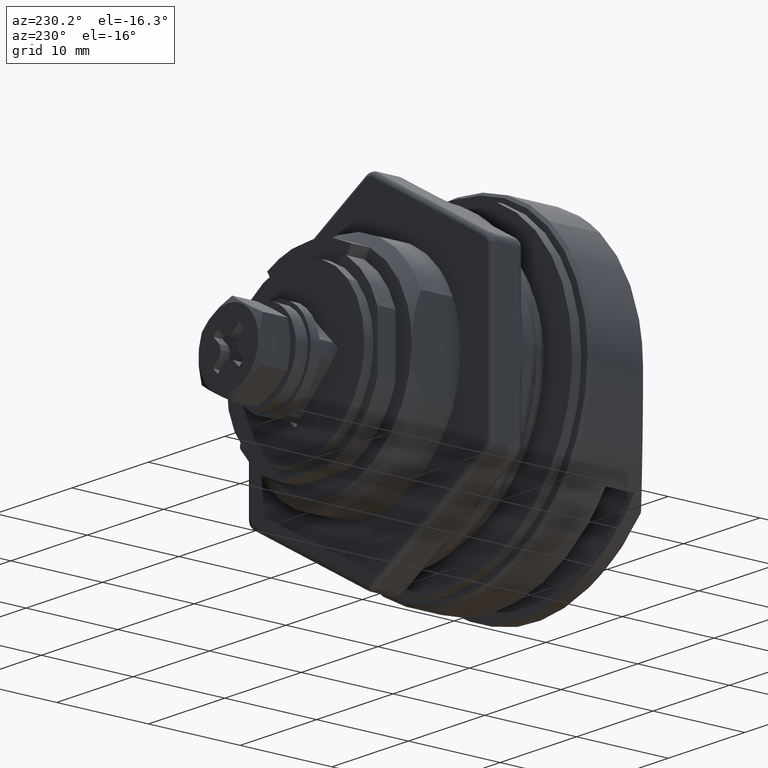
[diagram: clean part render]
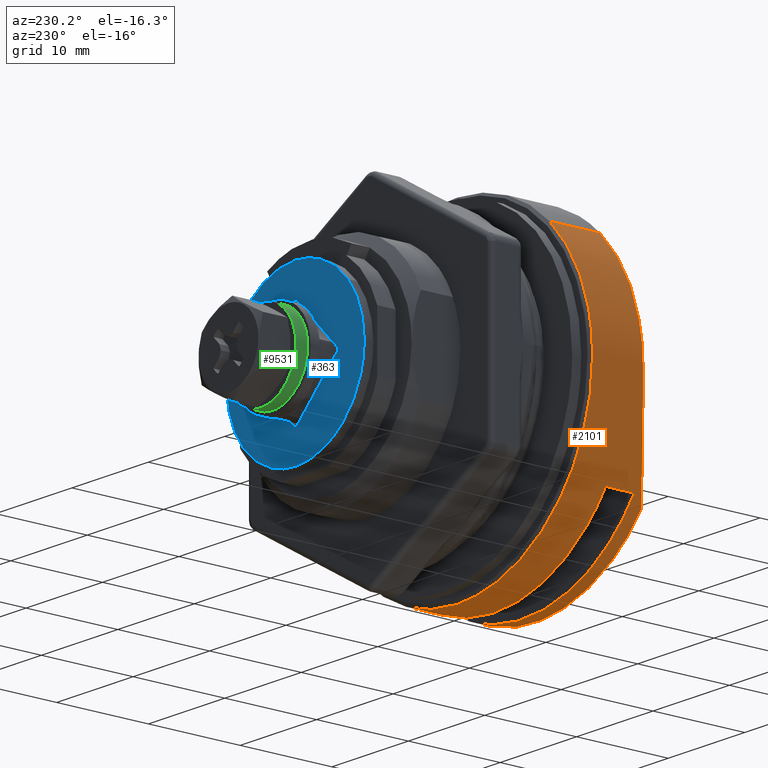
[diagram: same view with three faces highlighted in distinct colors, each labeled with its STEP entity id]
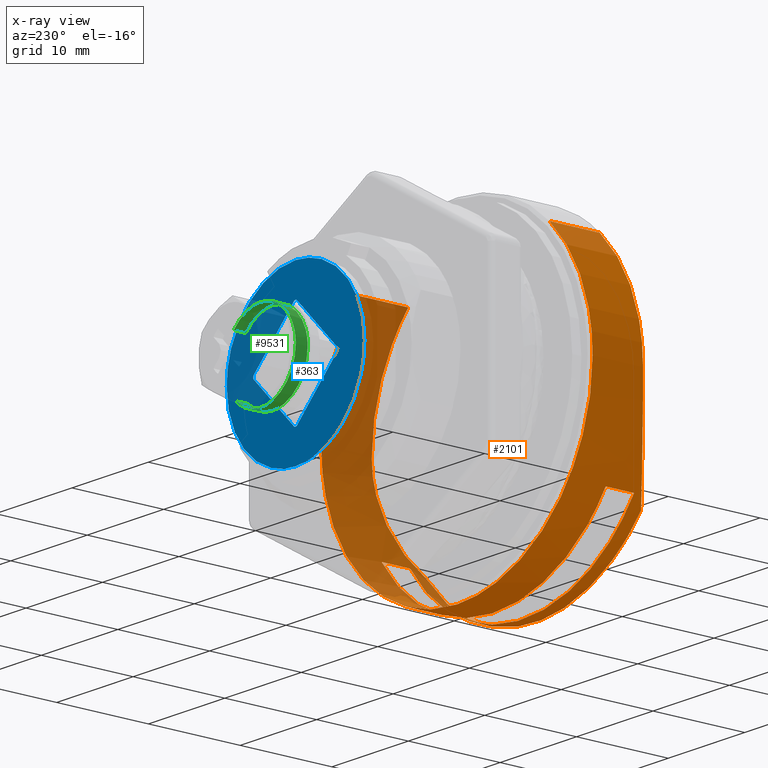
[diagram: x-ray of the same camera — body ghosted, the three highlighted faces saturated]
A machine part, auxiliary view with three faces highlighted in distinct colors.
The next image is the same camera in x-ray (body ghosted, the three faces saturated) — at least one of them is partly hidden behind the body in this view.
Their STEP definitions:

[orange] entity #2101 — the highlighted face is a freeform B-spline surface patch.
#1672=CARTESIAN_POINT('',(-0.299999867046097,-12.218293444005800,-12.875394796144080));
#1673=VERTEX_POINT('',#1672);
#1679=CARTESIAN_POINT('',(-0.300000000000000,0.0,-17.750000000000000));
#1680=VERTEX_POINT('',#1679);
#1681=CARTESIAN_POINT('',(-0.300000000000000,0.0,-17.750000000000000));
#1682=CARTESIAN_POINT('',(-0.299999988543598,-1.052828725761814,-17.750102904742452));
#1683=CARTESIAN_POINT('',(-0.299999966776865,-3.053163715430820,-17.571503823735249));
#1684=CARTESIAN_POINT('',(-0.299999940106577,-5.504128520025335,-16.924691890454209));
#1685=CARTESIAN_POINT('',(-0.299999915992278,-7.720202231654070,-16.032933288582122));
#1686=CARTESIAN_POINT('',(-0.299999892181847,-9.908350323715657,-14.825684033001320));
#1687=CARTESIAN_POINT('',(-0.299999875355516,-11.454668457918050,-13.600188855448771));
#1688=CARTESIAN_POINT('',(-0.299999867046097,-12.218293444005800,-12.875394796144080));
#1689=B_SPLINE_CURVE_WITH_KNOTS('',3,(#1681,#1682,#1683,#1684,#1685,#1686,#1687,#1688),.UNSPECIFIED.,.F.,.U.,(4,1,1,1,1,4),(0.000000012332725,3.158470538915436,6.001109010851600,7.580323866969556,10.317672732871390,13.476143089838081),.UNSPECIFIED.);
#1690=EDGE_CURVE('',#1680,#1673,#1689,.T.);
#1692=CARTESIAN_POINT('',(-0.300000131288423,13.553112962931330,-11.461921435616279));
#1693=VERTEX_POINT('',#1692);
#1694=CARTESIAN_POINT('',(-0.300000131288423,13.553112962931330,-11.461921435616279));
#1695=CARTESIAN_POINT('',(-0.300000126264510,13.034486393936850,-12.075222636975090));
#1696=CARTESIAN_POINT('',(-0.300000115679524,11.941781479967981,-13.202322685875060));
#1697=CARTESIAN_POINT('',(-0.300000097937156,10.110208590126300,-14.649174673675221));
#1698=CARTESIAN_POINT('',(-0.300000080546063,8.314898273128359,-15.724343522665690));
#1699=CARTESIAN_POINT('',(-0.300000061763169,6.375910295641682,-16.608000705610610));
#1700=CARTESIAN_POINT('',(-0.300000035788656,3.694519768397654,-17.473633258948428));
#1701=CARTESIAN_POINT('',(-0.300000014005255,1.445784856063179,-17.750394352927859));
#1702=CARTESIAN_POINT('',(-0.300000000000000,0.0,-17.750000000000000));
#1703=B_SPLINE_CURVE_WITH_KNOTS('',3,(#1694,#1695,#1696,#1697,#1698,#1699,#1700,#1701,#1702),.UNSPECIFIED.,.F.,.U.,(4,1,1,1,1,1,4),(0.000000015708585,2.409564260172145,4.698669382130550,6.987774147026485,8.674452576363173,11.084027019440290,15.421258577602631),.UNSPECIFIED.);
#1704=EDGE_CURVE('',#1693,#1680,#1703,.T.);
#1750=CARTESIAN_POINT('',(-0.300000000000000,17.749999999999972,-0.000001065090910));
#1751=VERTEX_POINT('',#1750);
#1752=CARTESIAN_POINT('',(-0.300000000000000,17.749999999999972,-0.000001065090910));
#1753=CARTESIAN_POINT('',(-0.300000010035324,17.750019675155968,-0.876118584288509));
#1754=CARTESIAN_POINT('',(-0.300000033451558,17.598451400906288,-2.920434548775805));
#1755=CARTESIAN_POINT('',(-0.300000062787687,16.953251680674821,-5.481577068726282));
#1756=CARTESIAN_POINT('',(-0.300000090267168,15.953281508162149,-7.880628256902441));
#1757=CARTESIAN_POINT('',(-0.300000111339919,14.910845486373320,-9.720349528800817));
#1758=CARTESIAN_POINT('',(-0.300000125328744,13.993146713055920,-10.941622041457441));
#1759=CARTESIAN_POINT('',(-0.300000131288423,13.553112962931330,-11.461921435616279));
#1760=B_SPLINE_CURVE_WITH_KNOTS('',3,(#1752,#1753,#1754,#1755,#1756,#1757,#1758,#1759),.UNSPECIFIED.,.F.,.U.,(4,1,1,1,1,4),(0.000000010143452,2.628369909175772,6.132878666389879,7.885106943545049,10.416138650649440,12.460420685079390),.UNSPECIFIED.);
#1761=EDGE_CURVE('',#1751,#1693,#1760,.T.);
#1763=CARTESIAN_POINT('',(-0.299999999997220,12.107306242099250,12.979816105406989));
#1764=VERTEX_POINT('',#1763);
#1765=CARTESIAN_POINT('',(-0.299999999997220,12.107306242099250,12.979816105406989));
#1766=CARTESIAN_POINT('',(-0.299999999997359,12.800417702617860,12.333373617445099));
#1767=CARTESIAN_POINT('',(-0.299999999997647,14.031414539252109,10.985270460546730));
#1768=CARTESIAN_POINT('',(-0.299999999998089,15.398504663733620,8.926992614698502));
#1769=CARTESIAN_POINT('',(-0.299999999998552,16.473211853514101,6.747645022581170));
#1770=CARTESIAN_POINT('',(-0.299999999998984,17.144514663236141,4.767044255581513));
#1771=CARTESIAN_POINT('',(-0.299999999999476,17.631280714446451,2.426295060643309));
#1772=CARTESIAN_POINT('',(-0.299999999999799,17.750063571241739,0.947782656503767));
#1773=CARTESIAN_POINT('',(-0.300000000000000,17.749999999999972,-0.000001065090910));
#1774=B_SPLINE_CURVE_WITH_KNOTS('',3,(#1765,#1766,#1767,#1768,#1769,#1770,#1771,#1772,#1773),.UNSPECIFIED.,.F.,.U.,(4,1,1,1,1,1,4),(0.000000014745977,2.843342055108494,5.459223078062687,7.392680137286575,10.122304650464780,11.714583165092209,14.557925205459320),.UNSPECIFIED.);
#1775=EDGE_CURVE('',#1764,#1751,#1774,.T.);
#1790=CARTESIAN_POINT('',(-0.300000000002757,-12.979816493215839,12.107306605198509));
#1791=VERTEX_POINT('',#1790);
#1803=CARTESIAN_POINT('',(-0.300000000000000,-17.749999999999972,0.000001065090899));
#1804=VERTEX_POINT('',#1803);
#1805=CARTESIAN_POINT('',(-0.300000000000000,-17.749999999999972,0.000001065090899));
#1806=CARTESIAN_POINT('',(-0.300000000000285,-17.750234916425619,1.249127172877697));
#1807=CARTESIAN_POINT('',(-0.300000000000695,-17.558702066229689,3.053284031516293));
#1808=CARTESIAN_POINT('',(-0.300000000001276,-16.885053741256520,5.605789292574293));
#1809=CARTESIAN_POINT('',(-0.300000000001689,-16.171030714376410,7.418049789203359));
#1810=CARTESIAN_POINT('',(-0.300000000002219,-14.922581446530341,9.744087907941498));
#1811=CARTESIAN_POINT('',(-0.300000000002549,-13.832018933884139,11.194034178320340));
#1812=CARTESIAN_POINT('',(-0.300000000002757,-12.979816493215839,12.107306605198509));
#1813=B_SPLINE_CURVE_WITH_KNOTS('',3,(#1805,#1806,#1807,#1808,#1809,#1810,#1811,#1812),.UNSPECIFIED.,.F.,.U.,(4,1,1,1,1,4),(0.000000012456752,3.747308020735424,5.412786374808356,7.910967219824267,9.576445573896802,13.323753582181110),.UNSPECIFIED.);
#1814=EDGE_CURVE('',#1804,#1791,#1813,.T.);
#1816=CARTESIAN_POINT('',(-0.299999867046097,-12.218293444005800,-12.875394796144080));
#1817=CARTESIAN_POINT('',(-0.299999876110757,-13.143682673736340,-11.997563493588229));
#1818=CARTESIAN_POINT('',(-0.299999891857188,-14.437471637466450,-10.472662615257780));
#1819=CARTESIAN_POINT('',(-0.299999916885247,-15.876392332974319,-8.048918854955145));
#1820=CARTESIAN_POINT('',(-0.299999939719605,-16.826468371198331,-5.837615697488216));
#1821=CARTESIAN_POINT('',(-0.299999967847782,-17.560249222442010,-3.113653449284983));
#1822=CARTESIAN_POINT('',(-0.299999988378495,-17.750127312998710,-1.125437905044317));
#1823=CARTESIAN_POINT('',(-0.300000000000000,-17.749999999999972,0.000001065090899));
#1824=B_SPLINE_CURVE_WITH_KNOTS('',3,(#1816,#1817,#1818,#1819,#1820,#1821,#1822,#1823),.UNSPECIFIED.,.F.,.U.,(4,1,1,1,1,4),(0.000000015013528,3.826471174833765,5.964805183553123,8.440731178028329,11.029239340615501,14.405536346576859),.UNSPECIFIED.);
#1825=EDGE_CURVE('',#1673,#1804,#1824,.T.);
#1896=CARTESIAN_POINT('',(-5.800000000000001,12.107306605702950,12.979816492745311));
#1897=VERTEX_POINT('',#1896);
#1898=CARTESIAN_POINT('',(-0.299999999997220,12.107306242099250,12.979816105406989));
#1899=CARTESIAN_POINT('',(-5.800000000000001,12.107306605702950,12.979816492745311));
#1900=QUASI_UNIFORM_CURVE('',1,(#1898,#1899),.UNSPECIFIED.,.F.,.U.);
#1901=EDGE_CURVE('',#1764,#1897,#1900,.T.);
#1916=CARTESIAN_POINT('',(-5.800000000000001,-12.979816104936470,12.107306242603681));
#1917=VERTEX_POINT('',#1916);
#1929=CARTESIAN_POINT('',(-0.300000000002757,-12.979816493215839,12.107306605198509));
#1930=CARTESIAN_POINT('',(-5.800000000000001,-12.979816104936470,12.107306242603681));
#1931=QUASI_UNIFORM_CURVE('',1,(#1929,#1930),.UNSPECIFIED.,.F.,.U.);
#1932=EDGE_CURVE('',#1791,#1917,#1931,.T.);
#1937=CARTESIAN_POINT('',(-0.087500000000000,12.107306451274180,12.979816273543101));
#1938=CARTESIAN_POINT('',(-0.087500000000000,25.087122724817281,0.872509822268924));
#1939=CARTESIAN_POINT('',(-0.087500000000000,12.979816273543101,-12.107306451274180));
#1940=CARTESIAN_POINT('',(-0.087500000000000,0.872509822268924,-25.087122724817281));
#1941=CARTESIAN_POINT('',(-0.087500000000000,-12.107306451274180,-12.979816273543101));
#1942=CARTESIAN_POINT('',(-0.087500000000000,-25.087122724817281,-0.872509822268924));
#1943=CARTESIAN_POINT('',(-0.087500000000000,-12.979816273543101,12.107306451274180));
#1944=CARTESIAN_POINT('',(-9.017812500000002,12.107306451274180,12.979816273543101));
#1945=CARTESIAN_POINT('',(-9.017812500000002,25.087122724817281,0.872509822268924));
#1946=CARTESIAN_POINT('',(-9.017812500000002,12.979816273543101,-12.107306451274180));
#1947=CARTESIAN_POINT('',(-9.017812500000002,0.872509822268924,-25.087122724817281));
#1948=CARTESIAN_POINT('',(-9.017812500000002,-12.107306451274180,-12.979816273543101));
#1949=CARTESIAN_POINT('',(-9.017812500000002,-25.087122724817281,-0.872509822268924));
#1950=CARTESIAN_POINT('',(-9.017812500000002,-12.979816273543101,12.107306451274180));
#1958=(BOUNDED_SURFACE()B_SPLINE_SURFACE(2,1,((#1937,#1944),(#1938,#1945),(#1939,#1946),(#1940,#1947),(#1941,#1948),(#1942,#1949),(#1943,#1950)),.UNSPECIFIED.,.F.,.F.,.U.)B_SPLINE_SURFACE_WITH_KNOTS((3,2,2,3),(2,2),(0.0,29.409162928489732,58.818325856979463,88.227488785469191),(0.0,8.930312500000003),.UNSPECIFIED.)GEOMETRIC_REPRESENTATION_ITEM()RATIONAL_B_SPLINE_SURFACE(((1.0,1.0),(0.707106781186548,0.707106781186548),(1.0,1.0),(0.707106781186548,0.707106781186548),(1.0,1.0),(0.707106781186548,0.707106781186548),(1.0,1.0)))REPRESENTATION_ITEM('')SURFACE());
#1959=ORIENTED_EDGE('',*,*,#1814,.T.);
#1960=ORIENTED_EDGE('',*,*,#1932,.T.);
#1961=CARTESIAN_POINT('',(-5.800000000000000,-17.750000000000000,5.434191E-015));
#1962=VERTEX_POINT('',#1961);
#1963=CARTESIAN_POINT('',(-5.800000000000000,-17.750000000000000,5.434191E-015));
#1964=CARTESIAN_POINT('',(-5.799999999999948,-17.750222493347589,1.249125749408951));
#1965=CARTESIAN_POINT('',(-5.800000000000050,-17.543971684249769,3.192059796860999));
#1966=CARTESIAN_POINT('',(-5.799999999999996,-16.765935162379328,6.006081962025014));
#1967=CARTESIAN_POINT('',(-5.799999999999961,-15.765617572685230,8.304461128746260));
#1968=CARTESIAN_POINT('',(-5.800000000000095,-14.428975390275030,10.422332413326560));
#1969=CARTESIAN_POINT('',(-5.799999999999868,-13.453161910508880,11.599863107382220));
#1970=CARTESIAN_POINT('',(-5.800000000000001,-12.979816104936470,12.107306242603681));
#1971=B_SPLINE_CURVE_WITH_KNOTS('',3,(#1963,#1964,#1965,#1966,#1967,#1968,#1969,#1970),.UNSPECIFIED.,.F.,.U.,(4,1,1,1,1,4),(0.000000012452045,3.747308264132270,5.829143617883125,8.743706936359633,11.241924741244990,13.323754447582120),.UNSPECIFIED.);
#1972=EDGE_CURVE('',#1962,#1917,#1971,.T.);
#1973=ORIENTED_EDGE('',*,*,#1972,.F.);
#1974=CARTESIAN_POINT('',(-8.800000000000001,-13.892857142857180,-11.047670361128720));
#1975=VERTEX_POINT('',#1974);
#1976=CARTESIAN_POINT('',(-8.799999999999995,-13.892857142857190,-11.047670361128720));
#1977=CARTESIAN_POINT('',(-5.800000000000026,-17.750000000000000,-6.197169491513503));
#1978=CARTESIAN_POINT('',(-5.800000000000026,-17.750000000000000,5.708907E-015));
#1986=(BOUNDED_CURVE()B_SPLINE_CURVE(2,(#1976,#1977,#1978),.UNSPECIFIED.,.F.,.U.)CURVE()GEOMETRIC_REPRESENTATION_ITEM()QUASI_UNIFORM_CURVE()RATIONAL_B_SPLINE_CURVE((1.0,0.944112328344034,1.0))REPRESENTATION_ITEM(''));
#1987=EDGE_CURVE('',#1975,#1962,#1986,.T.);
#1988=ORIENTED_EDGE('',*,*,#1987,.F.);
#1989=CARTESIAN_POINT('',(-8.800000000000001,13.892857142857160,-11.047670361128739));
#1990=VERTEX_POINT('',#1989);
#1991=CARTESIAN_POINT('',(-8.800000000000001,-13.892857142857180,-11.047670361128720));
#1992=CARTESIAN_POINT('',(-8.800000000000004,-13.427332157981070,-11.633121103262519));
#1993=CARTESIAN_POINT('',(-8.799999999999990,-12.366267662706001,-12.806831008592930));
#1994=CARTESIAN_POINT('',(-8.800000000000004,-10.585568120073150,-14.313840251725130));
#1995=CARTESIAN_POINT('',(-8.800000000000013,-8.340458674723843,-15.749434327885350));
#1996=CARTESIAN_POINT('',(-8.800000000000061,-6.010479826471952,-16.774261086305678));
#1997=CARTESIAN_POINT('',(-8.799999999999969,-3.237094561980660,-17.522048898088709));
#1998=CARTESIAN_POINT('',(-8.800000000000045,-0.334581760784345,-17.849707494471680));
#1999=CARTESIAN_POINT('',(-8.799999999999898,2.537771770573717,-17.637436571811890));
#2000=CARTESIAN_POINT('',(-8.800000000000189,4.850429486027844,-17.108611393010570));
#2001=CARTESIAN_POINT('',(-8.799999999999489,6.660938563099408,-16.488282020207791));
#2002=CARTESIAN_POINT('',(-8.800000000000269,8.849729372861781,-15.470149778281360));
#2003=CARTESIAN_POINT('',(-8.799999999999956,11.417348517831931,-13.751135651311509));
#2004=CARTESIAN_POINT('',(-8.799999999999900,13.117079720695660,-12.023533845151100));
#2005=CARTESIAN_POINT('',(-8.800000000000001,13.892857142857160,-11.047670361128739));
#2006=B_SPLINE_CURVE_WITH_KNOTS('',3,(#1991,#1992,#1993,#1994,#1995,#1996,#1997,#1998,#1999,#2000,#2001,#2002,#2003,#2004,#2005),.UNSPECIFIED.,.F.,.U.,(4,1,1,1,1,1,1,1,1,1,1,1,4),(0.000000059273052,2.243926738337372,4.737226870808602,6.981202535807903,10.222487147091510,12.341792153362579,15.583076616035489,18.948950493195738,20.943590492182889,22.688906116288820,24.683537198138179,28.174142375707412,31.914067595796858),.UNSPECIFIED.);
#2007=EDGE_CURVE('',#1975,#1990,#2006,.T.);
#2008=ORIENTED_EDGE('',*,*,#2007,.T.);
#2009=CARTESIAN_POINT('',(-5.800000000000000,17.750000000000000,-3.260514E-015));
#2010=VERTEX_POINT('',#2009);
#2011=CARTESIAN_POINT('',(-5.800000000000026,17.750000000000000,2.173676E-015));
#2012=CARTESIAN_POINT('',(-5.800000000000026,17.750000000000004,-6.197169491513519));
#2013=CARTESIAN_POINT('',(-8.800000000000008,13.892857142857171,-11.047670361128739));
#2021=(BOUNDED_CURVE()B_SPLINE_CURVE(2,(#2011,#2012,#2013),.UNSPECIFIED.,.F.,.U.)CURVE()GEOMETRIC_REPRESENTATION_ITEM()QUASI_UNIFORM_CURVE()RATIONAL_B_SPLINE_CURVE((1.0,0.944112328344031,1.0))REPRESENTATION_ITEM(''));
#2022=EDGE_CURVE('',#2010,#1990,#2021,.T.);
#2023=ORIENTED_EDGE('',*,*,#2022,.F.);
#2024=CARTESIAN_POINT('',(-5.800000000000001,12.107306605702950,12.979816492745311));
#2025=CARTESIAN_POINT('',(-5.800000000000011,13.133329423581429,12.023255627317340));
#2026=CARTESIAN_POINT('',(-5.799999999999987,14.463535314392480,10.448268192486600));
#2027=CARTESIAN_POINT('',(-5.800000000000019,15.995426471258380,7.825437347707940));
#2028=CARTESIAN_POINT('',(-5.799999999999971,16.923036490935541,5.574333650462606));
#2029=CARTESIAN_POINT('',(-5.800000000000043,17.592130095121352,2.843312288358081));
#2030=CARTESIAN_POINT('',(-5.799999999999930,17.750092260081921,1.023606256689556));
#2031=CARTESIAN_POINT('',(-5.800000000000000,17.750000000000000,-3.260514E-015));
#2032=B_SPLINE_CURVE_WITH_KNOTS('',3,(#2024,#2025,#2026,#2027,#2028,#2029,#2030,#2031),.UNSPECIFIED.,.F.,.U.,(4,1,1,1,1,4),(0.000000014745764,4.208153116911085,6.141629216462610,9.098701611568313,11.487115287807590,14.557924356539040),.UNSPECIFIED.);
#2033=EDGE_CURVE('',#1897,#2010,#2032,.T.);
#2034=ORIENTED_EDGE('',*,*,#2033,.F.);
#2035=ORIENTED_EDGE('',*,*,#1901,.F.);
#2036=ORIENTED_EDGE('',*,*,#1775,.T.);
#2037=ORIENTED_EDGE('',*,*,#1761,.T.);
#2038=ORIENTED_EDGE('',*,*,#1704,.T.);
#2039=ORIENTED_EDGE('',*,*,#1690,.T.);
#2040=ORIENTED_EDGE('',*,*,#1825,.T.);
#2041=EDGE_LOOP('',(#1959,#1960,#1973,#1988,#2008,#2023,#2034,#2035,#2036,#2037,#2038,#2039,#2040));
#2042=FACE_OUTER_BOUND('',#2041,.T.);
#2043=CARTESIAN_POINT('',(-4.300000000000000,-14.665009376062320,-10.000000000000201));
#2044=VERTEX_POINT('',#2043);
#2045=CARTESIAN_POINT('',(-7.400000000000000,-14.665009376062320,-10.000000000000201));
#2046=VERTEX_POINT('',#2045);
#2047=CARTESIAN_POINT('',(-4.300000000000000,-14.665009376062320,-10.000000000000201));
#2048=CARTESIAN_POINT('',(-7.400000000000000,-14.665009376062320,-10.000000000000201));
#2049=QUASI_UNIFORM_CURVE('',1,(#2047,#2048),.UNSPECIFIED.,.F.,.U.);
#2050=EDGE_CURVE('',#2044,#2046,#2049,.T.);
#2051=ORIENTED_EDGE('',*,*,#2050,.F.);
#2052=CARTESIAN_POINT('',(-4.300000000000000,14.665009376062320,-10.000000000000201));
#2053=VERTEX_POINT('',#2052);
#2054=CARTESIAN_POINT('',(-4.300000000000000,-14.665009376062320,-10.000000000000201));
#2055=CARTESIAN_POINT('',(-4.299999999999999,-14.158631285193151,-10.742681561697800));
#2056=CARTESIAN_POINT('',(-4.299999999999999,-12.948282246753280,-12.256524721259860));
#2057=CARTESIAN_POINT('',(-4.299999999999995,-10.936636035960630,-14.067870059904100));
#2058=CARTESIAN_POINT('',(-4.300000000000043,-8.640214272565611,-15.576024940539190));
#2059=CARTESIAN_POINT('',(-4.299999999999839,-6.393207956548527,-16.625090353513890));
#2060=CARTESIAN_POINT('',(-4.300000000000125,-4.323132791246897,-17.248306811350300));
#2061=CARTESIAN_POINT('',(-4.299999999999931,-2.379705774069908,-17.621847782056999));
#2062=CARTESIAN_POINT('',(-4.300000000000043,-0.001775568383335,-17.830294360421000));
#2063=CARTESIAN_POINT('',(-4.299999999999988,2.430025694954580,-17.645192354941731));
#2064=CARTESIAN_POINT('',(-4.300000000000002,4.758482087222699,-17.132909979300130));
#2065=CARTESIAN_POINT('',(-4.300000000000010,7.067387208268632,-16.370478679741780));
#2066=CARTESIAN_POINT('',(-4.299999999999979,9.669057215041349,-15.008111161906610));
#2067=CARTESIAN_POINT('',(-4.300000000000046,12.429810107644229,-12.827669676383680));
#2068=CARTESIAN_POINT('',(-4.299999999999950,13.930896345746300,-11.077012142804040));
#2069=CARTESIAN_POINT('',(-4.300000000000000,14.665009376062320,-10.000000000000201));
#2070=B_SPLINE_CURVE_WITH_KNOTS('',3,(#2054,#2055,#2056,#2057,#2058,#2059,#2060,#2061,#2062,#2063,#2064,#2065,#2066,#2067,#2068,#2069),.UNSPECIFIED.,.F.,.U.,(4,1,1,1,1,1,1,1,1,1,1,1,1,4),(0.000000055928290,2.696660876827082,5.797877129424911,8.090064053524273,10.921597811789770,13.213793874018810,14.562124413103319,16.854344264872669,20.359975966950369,21.843160198073932,24.000521340135268,27.641060244544502,30.607432193487440,34.517614646382142),.UNSPECIFIED.);
#2071=EDGE_CURVE('',#2044,#2053,#2070,.T.);
#2072=ORIENTED_EDGE('',*,*,#2071,.T.);
#2073=CARTESIAN_POINT('',(-7.400000000000000,14.665009376062320,-10.000000000000201));
#2074=VERTEX_POINT('',#2073);
#2075=CARTESIAN_POINT('',(-7.400000000000000,14.665009376062320,-10.000000000000201));
#2076=CARTESIAN_POINT('',(-4.300000000000000,14.665009376062320,-10.000000000000201));
#2077=QUASI_UNIFORM_CURVE('',1,(#2075,#2076),.UNSPECIFIED.,.F.,.U.);
#2078=EDGE_CURVE('',#2074,#2053,#2077,.T.);
#2079=ORIENTED_EDGE('',*,*,#2078,.F.);
#2080=CARTESIAN_POINT('',(-7.400000000000000,-14.665009376062320,-10.000000000000201));
#2081=CARTESIAN_POINT('',(-7.400000000000008,-14.057379411826201,-10.891237780480010));
#2082=CARTESIAN_POINT('',(-7.399999999999984,-12.621563587044500,-12.632112276914810));
#2083=CARTESIAN_POINT('',(-7.400000000000016,-10.290250946909421,-14.561255758399509));
#2084=CARTESIAN_POINT('',(-7.399999999999989,-8.072472944139188,-15.854361702666891));
#2085=CARTESIAN_POINT('',(-7.399999999999920,-6.091296775191419,-16.715895540055399));
#2086=CARTESIAN_POINT('',(-7.400000000000084,-3.590009933960428,-17.469256135242190));
#2087=CARTESIAN_POINT('',(-7.399999999999993,-0.631437701083522,-17.841950326700470));
#2088=CARTESIAN_POINT('',(-7.399999999999988,2.249747017125389,-17.666568014251940));
#2089=CARTESIAN_POINT('',(-7.400000000000006,4.366934561363435,-17.234436825605339));
#2090=CARTESIAN_POINT('',(-7.400000000000018,6.171840306753189,-16.676000446267849));
#2091=CARTESIAN_POINT('',(-7.399999999999893,8.367593788459294,-15.741104573878710));
#2092=CARTESIAN_POINT('',(-7.400000000000296,10.813314740207581,-14.200490565448071));
#2093=CARTESIAN_POINT('',(-7.399999999999491,13.035711766712060,-12.152949862978771));
#2094=CARTESIAN_POINT('',(-7.400000000000388,14.183933233917960,-10.705542927073500));
#2095=CARTESIAN_POINT('',(-7.400000000000000,14.665009376062320,-10.000000000000201));
#2096=B_SPLINE_CURVE_WITH_KNOTS('',3,(#2080,#2081,#2082,#2083,#2084,#2085,#2086,#2087,#2088,#2089,#2090,#2091,#2092,#2093,#2094,#2095),.UNSPECIFIED.,.F.,.U.,(4,1,1,1,1,1,1,1,1,1,1,1,1,4),(0.000000055928290,3.235996913861900,6.741712123553214,9.033909822913177,10.921597811789770,13.213793874018810,16.854344264872669,19.820656059963859,21.843160198073932,23.326347656024719,25.483707004105199,28.989406064881582,31.955765933486081,34.517614646382142),.UNSPECIFIED.);
#2097=EDGE_CURVE('',#2046,#2074,#2096,.T.);
#2098=ORIENTED_EDGE('',*,*,#2097,.F.);
#2099=EDGE_LOOP('',(#2051,#2072,#2079,#2098));
#2100=FACE_BOUND('',#2099,.T.);
#2101=ADVANCED_FACE('',(#2042,#2100),#1958,.T.);

[blue] entity #363 — the highlighted face is a freeform B-spline surface patch.
#70=CARTESIAN_POINT('',(65.729433000018304,6.872001030358097,5.811678623757999));
#71=VERTEX_POINT('',#70);
#72=CARTESIAN_POINT('',(65.729433000000000,0.0,9.0));
#73=VERTEX_POINT('',#72);
#74=CARTESIAN_POINT('',(65.729433000018304,6.872001030358097,5.811678623757999));
#75=CARTESIAN_POINT('',(65.729433000016982,6.359384206856037,6.418260298420508));
#76=CARTESIAN_POINT('',(65.729433000014708,5.506893556927253,7.190517390025404));
#77=CARTESIAN_POINT('',(65.729433000010843,4.112715698205281,8.038350731110677));
#78=CARTESIAN_POINT('',(65.729433000008001,2.987170788102315,8.523874148929050));
#79=CARTESIAN_POINT('',(65.729433000004093,1.567892012498330,8.903445676359389));
#80=CARTESIAN_POINT('',(65.729433000001734,0.590519170150803,9.000073547374242));
#81=CARTESIAN_POINT('',(65.729433000000000,0.0,9.0));
#82=B_SPLINE_CURVE_WITH_KNOTS('',3,(#74,#75,#76,#77,#78,#79,#80,#81),.UNSPECIFIED.,.F.,.U.,(4,1,1,1,1,4),(0.000000020271652,2.382423329695035,3.420920809282999,4.887010239480308,6.047685875997656,7.819229718516048),.UNSPECIFIED.);
#83=EDGE_CURVE('',#71,#73,#82,.T.);
#152=CARTESIAN_POINT('',(65.729432999978656,6.195190965594668,-6.528369032856809));
#153=VERTEX_POINT('',#152);
#159=CARTESIAN_POINT('',(65.729433000000000,0.0,-9.0));
#160=VERTEX_POINT('',#159);
#161=CARTESIAN_POINT('',(65.729433000000000,0.0,-9.0));
#162=CARTESIAN_POINT('',(65.729432999998636,0.391470736233180,-9.000007520878796));
#163=CARTESIAN_POINT('',(65.729432999995623,1.281187287052051,-8.941889066021046));
#164=CARTESIAN_POINT('',(65.729432999991261,2.502683289900376,-8.677024272989506));
#165=CARTESIAN_POINT('',(65.729432999987097,3.772539943049901,-8.205000966951896));
#166=CARTESIAN_POINT('',(65.729432999982819,4.995952984632489,-7.539451654083897));
#167=CARTESIAN_POINT('',(65.729432999980048,5.807998508010011,-6.895865702730818));
#168=CARTESIAN_POINT('',(65.729432999978656,6.195190965594668,-6.528369032856809));
#169=B_SPLINE_CURVE_WITH_KNOTS('',3,(#161,#162,#163,#164,#165,#166,#167,#168),.UNSPECIFIED.,.F.,.U.,(4,1,1,1,1,4),(0.000000011175234,1.174422093207909,2.669151614996310,3.736787244574158,5.231519879861018,6.833003998688739),.UNSPECIFIED.);
#170=EDGE_CURVE('',#160,#153,#169,.T.);
#172=CARTESIAN_POINT('',(65.729433000000000,-8.999999999999877,-0.000001484400945));
#173=VERTEX_POINT('',#172);
#174=CARTESIAN_POINT('',(65.729433000000000,-8.999999999999877,-0.000001484400945));
#175=CARTESIAN_POINT('',(65.729432999999901,-9.000097172474176,-0.625874056645069));
#176=CARTESIAN_POINT('',(65.729433000000071,-8.899731611430594,-1.583029453587813));
#177=CARTESIAN_POINT('',(65.729433000000000,-8.505471429378021,-3.042466313319136));
#178=CARTESIAN_POINT('',(65.729433000000142,-7.885023181374842,-4.465950627549722));
#179=CARTESIAN_POINT('',(65.729432999999332,-6.967908896795379,-5.768144041052868));
#180=CARTESIAN_POINT('',(65.729433000000625,-5.950631306239110,-6.785239650235890));
#181=CARTESIAN_POINT('',(65.729432999999290,-4.898457850144528,-7.596104363077391));
#182=CARTESIAN_POINT('',(65.729433000000540,-3.566019287880704,-8.318890840728455));
#183=CARTESIAN_POINT('',(65.729432999999858,-1.877553741478638,-8.865210939365950));
#184=CARTESIAN_POINT('',(65.729432999999588,-0.662684474324372,-9.000102473785770));
#185=CARTESIAN_POINT('',(65.729433000000000,0.0,-9.0));
#186=B_SPLINE_CURVE_WITH_KNOTS('',3,(#174,#175,#176,#177,#178,#179,#180,#181,#182,#183,#184,#185),.UNSPECIFIED.,.F.,.U.,(4,1,1,1,1,1,1,1,1,4),(0.000000024243144,1.877600535210096,2.871623616402447,4.528348437740505,6.516411379462643,7.620842307912144,8.835774663321015,10.492493555562181,12.149204369262440,14.137254809238049),.UNSPECIFIED.);
#187=EDGE_CURVE('',#173,#160,#186,.T.);
#189=CARTESIAN_POINT('',(65.729433000000000,0.0,9.0));
#190=CARTESIAN_POINT('',(65.729433000000085,-0.625873441907675,9.000109056864902));
#191=CARTESIAN_POINT('',(65.729432999999943,-1.583024500956502,8.899713735857061));
#192=CARTESIAN_POINT('',(65.729433000000000,-3.113677204617810,8.486283853123183));
#193=CARTESIAN_POINT('',(65.729433000000029,-4.396091900516330,7.908399200827454));
#194=CARTESIAN_POINT('',(65.729432999999986,-5.644102265602140,7.052065420901317));
#195=CARTESIAN_POINT('',(65.729432999999872,-6.644821539006269,6.122470703357553));
#196=CARTESIAN_POINT('',(65.729433000000995,-7.469224864948949,5.079343538077034));
#197=CARTESIAN_POINT('',(65.729432999998366,-8.112672249406998,3.959556309981207));
#198=CARTESIAN_POINT('',(65.729433000000711,-8.613511060876848,2.729189108500707));
#199=CARTESIAN_POINT('',(65.729433000001308,-8.929409958066721,1.398981406301833));
#200=CARTESIAN_POINT('',(65.729432999997343,-9.000016887941689,0.441776497050362));
#201=CARTESIAN_POINT('',(65.729433000000000,-8.999999999999877,-0.000001484400945));
#202=B_SPLINE_CURVE_WITH_KNOTS('',3,(#189,#190,#191,#192,#193,#194,#195,#196,#197,#198,#199,#200,#201),.UNSPECIFIED.,.F.,.U.,(4,1,1,1,1,1,1,1,1,1,4),(0.000000023714614,1.877600756819515,2.871623955883411,4.749241232129432,6.074628546725950,7.399955449215207,8.835775709888040,10.050700131892610,11.265633512432631,12.811911544655629,14.137256482514420),.UNSPECIFIED.);
#203=EDGE_CURVE('',#73,#173,#202,.T.);
#222=CARTESIAN_POINT('',(65.729433000000000,8.999999999999877,0.000001484401064));
#223=VERTEX_POINT('',#222);
#224=CARTESIAN_POINT('',(65.729433000000000,8.999999999999877,0.000001484401064));
#225=CARTESIAN_POINT('',(65.729433000002771,9.000276342586746,0.822687889216993));
#226=CARTESIAN_POINT('',(65.729433000006267,8.831894734390541,2.040043407523751));
#227=CARTESIAN_POINT('',(65.729433000011056,8.314817404339447,3.501209926769902));
#228=CARTESIAN_POINT('',(65.729433000014609,7.743472827648051,4.652496899915406));
#229=CARTESIAN_POINT('',(65.729433000017025,7.233279871197698,5.384578794337709));
#230=CARTESIAN_POINT('',(65.729433000018304,6.872001030358097,5.811678623757999));
#231=B_SPLINE_CURVE_WITH_KNOTS('',3,(#224,#225,#226,#227,#228,#229,#230),.UNSPECIFIED.,.F.,.U.,(4,1,1,1,4),(0.000000012344934,2.467964904542472,3.652575742713296,4.639767487952756,6.317982705482813),.UNSPECIFIED.);
#232=EDGE_CURVE('',#223,#71,#231,.T.);
#234=CARTESIAN_POINT('',(65.729432999978656,6.195190965594668,-6.528369032856809));
#235=CARTESIAN_POINT('',(65.729432999980219,6.636788984128472,-6.109442490113374));
#236=CARTESIAN_POINT('',(65.729432999982237,7.259882119469520,-5.384452830429281));
#237=CARTESIAN_POINT('',(65.729432999986372,7.998751558975100,-4.183690986239063));
#238=CARTESIAN_POINT('',(65.729432999990465,8.525924678375858,-2.998438777432815));
#239=CARTESIAN_POINT('',(65.729432999993648,8.908547368557905,-1.559735350462782));
#240=CARTESIAN_POINT('',(65.729432999999005,9.000054303640797,-0.532599793875401));
#241=CARTESIAN_POINT('',(65.729433000000000,8.999999999999877,0.000001484401064));
#242=B_SPLINE_CURVE_WITH_KNOTS('',3,(#234,#235,#236,#237,#238,#239,#240,#241),.UNSPECIFIED.,.F.,.U.,(4,1,1,1,1,4),(6.962389E-009,1.826063289238066,2.853231085317813,4.222764824014586,5.706450246305137,7.304253136092705),.UNSPECIFIED.);
#243=EDGE_CURVE('',#153,#223,#242,.T.);
#272=CARTESIAN_POINT('',(65.729433000000000,-9.899099965112372,9.899099965112507));
#273=CARTESIAN_POINT('',(65.729433000000000,9.899100447909996,9.899099965112507));
#274=CARTESIAN_POINT('',(65.729433000000000,-9.899099965112372,-9.899100447910129));
#275=CARTESIAN_POINT('',(65.729433000000000,9.899100447909996,-9.899100447910129));
#276=B_SPLINE_SURFACE_WITH_KNOTS('',1,1,((#272,#274),(#273,#275)),.UNSPECIFIED.,.F.,.F.,.U.,(2,2),(2,2),(0.0,19.798200413022371),(0.0,19.798200413022631),.UNSPECIFIED.);
#277=ORIENTED_EDGE('',*,*,#203,.T.);
#278=ORIENTED_EDGE('',*,*,#187,.T.);
#279=ORIENTED_EDGE('',*,*,#170,.T.);
#280=ORIENTED_EDGE('',*,*,#243,.T.);
#281=ORIENTED_EDGE('',*,*,#232,.T.);
#282=ORIENTED_EDGE('',*,*,#83,.T.);
#283=EDGE_LOOP('',(#277,#278,#279,#280,#281,#282));
#284=FACE_OUTER_BOUND('',#283,.T.);
#285=CARTESIAN_POINT('',(65.729433000000000,0.212132000000082,5.444722000000100));
#286=VERTEX_POINT('',#285);
#287=CARTESIAN_POINT('',(65.729433000000000,-0.212131999999997,5.444722000000100));
#288=VERTEX_POINT('',#287);
#289=CARTESIAN_POINT('',(65.729433000000000,0.212132000000082,5.444722000000100));
#290=CARTESIAN_POINT('',(65.729432999999929,0.184386079921562,5.472511660897834));
#291=CARTESIAN_POINT('',(65.729433000000100,0.113635373953662,5.519753424033975));
#292=CARTESIAN_POINT('',(65.729433000000043,-0.005274541345192,5.540422156935523));
#293=CARTESIAN_POINT('',(65.729433000000014,-0.121938895607456,5.514159179854079));
#294=CARTESIAN_POINT('',(65.729432999999958,-0.184388051611774,5.472526492101419));
#295=CARTESIAN_POINT('',(65.729433000000000,-0.212131999999997,5.444722000000100));
#296=B_SPLINE_CURVE_WITH_KNOTS('',3,(#289,#290,#291,#292,#293,#294,#295),.UNSPECIFIED.,.F.,.U.,(4,1,1,1,4),(0.000000408637850,0.117821834106262,0.250343260045319,0.353464684666031,0.471286110346820),.UNSPECIFIED.);
#297=EDGE_CURVE('',#286,#288,#296,.T.);
#298=ORIENTED_EDGE('',*,*,#297,.F.);
#299=CARTESIAN_POINT('',(65.729433000000000,5.444722945373909,0.212132054626289));
#300=VERTEX_POINT('',#299);
#301=CARTESIAN_POINT('',(65.729433000000000,5.444722945373909,0.212132054626289));
#302=CARTESIAN_POINT('',(65.729433000000000,0.212132000000082,5.444722000000100));
#303=QUASI_UNIFORM_CURVE('',1,(#301,#302),.UNSPECIFIED.,.F.,.U.);
#304=EDGE_CURVE('',#300,#286,#303,.T.);
#305=ORIENTED_EDGE('',*,*,#304,.F.);
#306=CARTESIAN_POINT('',(65.729433000000000,5.444723000000100,-0.212131999999997));
#307=VERTEX_POINT('',#306);
#308=CARTESIAN_POINT('',(65.729433000000000,5.444723000000100,-0.212131999999997));
#309=CARTESIAN_POINT('',(65.729433000000071,5.479516429863451,-0.177471868075262));
#310=CARTESIAN_POINT('',(65.729432999999972,5.518371596012647,-0.112340152964019));
#311=CARTESIAN_POINT('',(65.729432999999872,5.538683231537952,0.004648623694057));
#312=CARTESIAN_POINT('',(65.729433000000469,5.519761884838957,0.113634184960008));
#313=CARTESIAN_POINT('',(65.729432999999673,5.472509863496084,0.184383823507141));
#314=CARTESIAN_POINT('',(65.729433000000000,5.444722945373909,0.212132054626289));
#315=B_SPLINE_CURVE_WITH_KNOTS('',3,(#308,#309,#310,#311,#312,#313,#314),.UNSPECIFIED.,.F.,.U.,(4,1,1,1,4),(0.000000408434713,0.147281198011693,0.220943279178266,0.353464717475880,0.471286153892220),.UNSPECIFIED.);
#316=EDGE_CURVE('',#307,#300,#315,.T.);
#317=ORIENTED_EDGE('',*,*,#316,.F.);
#318=CARTESIAN_POINT('',(65.729433000000000,0.212132014085741,-5.444721985914440));
#319=VERTEX_POINT('',#318);
#320=CARTESIAN_POINT('',(65.729433000000000,0.212132014085741,-5.444721985914440));
#321=CARTESIAN_POINT('',(65.729433000000000,5.444723000000100,-0.212131999999997));
#322=QUASI_UNIFORM_CURVE('',1,(#320,#321),.UNSPECIFIED.,.F.,.U.);
#323=EDGE_CURVE('',#319,#307,#322,.T.);
#324=ORIENTED_EDGE('',*,*,#323,.F.);
#325=CARTESIAN_POINT('',(65.729433000000000,-0.212131999999997,-5.444722000000100));
#326=VERTEX_POINT('',#325);
#327=CARTESIAN_POINT('',(65.729433000000000,-0.212131999999997,-5.444722000000100));
#328=CARTESIAN_POINT('',(65.729433000000000,-0.184383361678371,-5.472509316867465));
#329=CARTESIAN_POINT('',(65.729433000000043,-0.113635120546594,-5.519759623273615));
#330=CARTESIAN_POINT('',(65.729432999999943,-0.004646125359195,-5.538686081295389));
#331=CARTESIAN_POINT('',(65.729433000000071,0.112334546114023,-5.518362015725913));
#332=CARTESIAN_POINT('',(65.729433000000043,0.177478818119487,-5.479524118910551));
#333=CARTESIAN_POINT('',(65.729433000000000,0.212132014085741,-5.444721985914440));
#334=B_SPLINE_CURVE_WITH_KNOTS('',3,(#327,#328,#329,#330,#331,#332,#333),.UNSPECIFIED.,.F.,.U.,(4,1,1,1,4),(0.000000408585522,0.117821836865675,0.250343266007407,0.324005341991293,0.471286121575230),.UNSPECIFIED.);
#335=EDGE_CURVE('',#326,#319,#334,.T.);
#336=ORIENTED_EDGE('',*,*,#335,.F.);
#337=CARTESIAN_POINT('',(65.729433000000000,-5.444721965643990,-0.212132034355904));
#338=VERTEX_POINT('',#337);
#339=CARTESIAN_POINT('',(65.729433000000000,-5.444721965643990,-0.212132034355904));
#340=CARTESIAN_POINT('',(65.729433000000000,-0.212131999999997,-5.444722000000100));
#341=QUASI_UNIFORM_CURVE('',1,(#339,#340),.UNSPECIFIED.,.F.,.U.);
#342=EDGE_CURVE('',#338,#326,#341,.T.);
#343=ORIENTED_EDGE('',*,*,#342,.F.);
#344=CARTESIAN_POINT('',(65.729433000000000,-5.444721965643990,0.212132034356021));
#345=VERTEX_POINT('',#344);
#346=CARTESIAN_POINT('',(65.729433000000000,-5.444721965643990,0.212132034356021));
#347=CARTESIAN_POINT('',(65.729433000000029,-5.465544609760477,0.191311241110509));
#348=CARTESIAN_POINT('',(65.729433000000000,-5.509945234415409,0.131527344857321));
#349=CARTESIAN_POINT('',(65.729432999999915,-5.539436494090289,0.024909247227992));
#350=CARTESIAN_POINT('',(65.729433000000157,-5.523561711591595,-0.103665333278859));
#351=CARTESIAN_POINT('',(65.729432999999844,-5.479510926378064,-0.177476054827633));
#352=CARTESIAN_POINT('',(65.729433000000000,-5.444721965643990,-0.212132034355904));
#353=B_SPLINE_CURVE_WITH_KNOTS('',3,(#346,#347,#348,#349,#350,#351,#352),.UNSPECIFIED.,.F.,.U.,(4,1,1,1,4),(0.000000408382577,0.088362493650075,0.220943284373911,0.324005372019069,0.471286165120588),.UNSPECIFIED.);
#354=EDGE_CURVE('',#345,#338,#353,.T.);
#355=ORIENTED_EDGE('',*,*,#354,.F.);
#356=CARTESIAN_POINT('',(65.729433000000000,-0.212131999999997,5.444722000000100));
#357=CARTESIAN_POINT('',(65.729433000000000,-5.444721965643990,0.212132034356021));
#358=QUASI_UNIFORM_CURVE('',1,(#356,#357),.UNSPECIFIED.,.F.,.U.);
#359=EDGE_CURVE('',#288,#345,#358,.T.);
#360=ORIENTED_EDGE('',*,*,#359,.F.);
#361=EDGE_LOOP('',(#298,#305,#317,#324,#336,#343,#355,#360));
#362=FACE_BOUND('',#361,.T.);
#363=ADVANCED_FACE('',(#284,#362),#276,.F.);

[green] entity #9531 — the highlighted face is a freeform B-spline surface patch.
#9380=CARTESIAN_POINT('',(81.024789999999996,-3.512355957526139,2.970413376557318));
#9381=CARTESIAN_POINT('',(81.024789999999996,-3.427344002864968,3.070935495051533));
#9382=CARTESIAN_POINT('',(81.024789999999996,-3.336722106656522,3.166431048191268));
#9383=CARTESIAN_POINT('',(81.024790000000010,-0.170291058465255,6.503153154847790));
#9384=CARTESIAN_POINT('',(81.024789999999996,3.166431048191268,3.336722106656522));
#9385=CARTESIAN_POINT('',(81.024790000000010,6.503153154847790,0.170291058465255));
#9386=CARTESIAN_POINT('',(81.024789999999996,3.336722106656522,-3.166431048191268));
#9387=CARTESIAN_POINT('',(81.024790000000010,0.170291058465255,-6.503153154847790));
#9388=CARTESIAN_POINT('',(81.024789999999996,-3.166431048191268,-3.336722106656522));
#9389=CARTESIAN_POINT('',(79.658977500000006,-3.512355957526139,2.970413376557318));
#9390=CARTESIAN_POINT('',(79.658977500000006,-3.427344002864968,3.070935495051533));
#9391=CARTESIAN_POINT('',(79.658977500000006,-3.336722106656522,3.166431048191268));
#9392=CARTESIAN_POINT('',(79.658977500000006,-0.170291058465255,6.503153154847790));
#9393=CARTESIAN_POINT('',(79.658977500000006,3.166431048191268,3.336722106656522));
#9394=CARTESIAN_POINT('',(79.658977500000006,6.503153154847790,0.170291058465255));
#9395=CARTESIAN_POINT('',(79.658977500000006,3.336722106656522,-3.166431048191268));
#9396=CARTESIAN_POINT('',(79.658977500000006,0.170291058465255,-6.503153154847790));
#9397=CARTESIAN_POINT('',(79.658977500000006,-3.166431048191268,-3.336722106656522));
#9405=(BOUNDED_SURFACE()B_SPLINE_SURFACE(2,1,((#9380,#9389),(#9381,#9390),(#9382,#9391),(#9383,#9392),(#9384,#9393),(#9385,#9394),(#9386,#9395),(#9387,#9396),(#9388,#9397)),.UNSPECIFIED.,.F.,.F.,.U.)B_SPLINE_SURFACE_WITH_KNOTS((3,2,2,2,3),(2,2),(0.0,0.304861181906598,7.926390729571546,15.547920277236489,23.169449824901442),(0.0,1.0),.UNSPECIFIED.)GEOMETRIC_REPRESENTATION_ITEM()RATIONAL_B_SPLINE_SURFACE(((0.977505800795127,0.977505800795127),(0.988284271247462,0.988284271247462),(1.0,1.0),(0.707106781186548,0.707106781186548),(1.0,1.0),(0.707106781186548,0.707106781186548),(1.0,1.0),(0.707106781186548,0.707106781186548),(1.0,1.0)))REPRESENTATION_ITEM('')SURFACE());
#9406=CARTESIAN_POINT('',(80.992290000013071,-3.512356188612781,2.970413499030548));
#9407=VERTEX_POINT('',#9406);
#9408=CARTESIAN_POINT('',(80.992289999999997,0.0,4.600000000000000));
#9409=VERTEX_POINT('',#9408);
#9410=CARTESIAN_POINT('',(80.992290000013071,-3.512356188612781,2.970413499030548));
#9411=CARTESIAN_POINT('',(80.992290000012403,-3.310769254456525,3.208843059232966));
#9412=CARTESIAN_POINT('',(80.992290000010527,-2.843716517669515,3.658920879026058));
#9413=CARTESIAN_POINT('',(80.992290000007287,-1.972653078994465,4.201020841567450));
#9414=CARTESIAN_POINT('',(80.992290000004189,-0.999111754989936,4.529840594221769));
#9415=CARTESIAN_POINT('',(80.992290000000978,-0.312226239711515,4.600033760580900));
#9416=CARTESIAN_POINT('',(80.992289999999997,0.0,4.600000000000000));
#9417=B_SPLINE_CURVE_WITH_KNOTS('',3,(#9410,#9411,#9412,#9413,#9414,#9415,#9416),.UNSPECIFIED.,.F.,.U.,(4,1,1,1,4),(0.000000030768966,0.936683237950231,1.935827839752677,3.059835108809352,3.996518315977401),.UNSPECIFIED.);
#9418=EDGE_CURVE('',#9407,#9409,#9417,.T.);
#9419=ORIENTED_EDGE('',*,*,#9418,.T.);
#9420=CARTESIAN_POINT('',(80.992289999999997,4.599999999999883,-0.000001036521492));
#9421=VERTEX_POINT('',#9420);
#9422=CARTESIAN_POINT('',(80.992289999999997,0.0,4.600000000000000));
#9423=CARTESIAN_POINT('',(80.992290000000139,0.263428581011519,4.600017157102218));
#9424=CARTESIAN_POINT('',(80.992289999999755,0.827930963191219,4.551389744986190));
#9425=CARTESIAN_POINT('',(80.992290000000224,1.684422223100357,4.314425383929875));
#9426=CARTESIAN_POINT('',(80.992289999999798,2.476210271258234,3.909710485594873));
#9427=CARTESIAN_POINT('',(80.992290000000210,3.235588602316168,3.317155091908925));
#9428=CARTESIAN_POINT('',(80.992289999999912,3.858119264775901,2.577333448639765));
#9429=CARTESIAN_POINT('',(80.992290000000168,4.288558369244663,1.734950556967053));
#9430=CARTESIAN_POINT('',(80.992289999999500,4.540867184641047,0.884366020396224));
#9431=CARTESIAN_POINT('',(80.992290000000594,4.600050603220242,0.319882059579162));
#9432=CARTESIAN_POINT('',(80.992289999999997,4.599999999999883,-0.000001036521492));
#9433=B_SPLINE_CURVE_WITH_KNOTS('',3,(#9422,#9423,#9424,#9425,#9426,#9427,#9428,#9429,#9430,#9431,#9432),.UNSPECIFIED.,.F.,.U.,(4,1,1,1,1,1,1,1,4),(0.000000100950778,0.790291232564839,1.693524909492139,2.653208040671613,3.443510168955241,4.572500938822984,5.532184693610670,6.266062647418838,7.225709025435100),.UNSPECIFIED.);
#9434=EDGE_CURVE('',#9409,#9421,#9433,.T.);
#9435=ORIENTED_EDGE('',*,*,#9434,.T.);
#9436=CARTESIAN_POINT('',(80.992289999999997,0.0,-4.600000000000000));
#9437=VERTEX_POINT('',#9436);
#9438=CARTESIAN_POINT('',(80.992289999999997,4.599999999999883,-0.000001036521492));
#9439=CARTESIAN_POINT('',(80.992289999999983,4.600102361310749,-0.376342687174723));
#9440=CARTESIAN_POINT('',(80.992290000000025,4.514063330212935,-1.072518565944983));
#9441=CARTESIAN_POINT('',(80.992290000000025,4.196408116519119,-1.943446165877033));
#9442=CARTESIAN_POINT('',(80.992290000000025,3.768843938121143,-2.676983067146251));
#9443=CARTESIAN_POINT('',(80.992290000000153,3.148120478232165,-3.414973943248999));
#9444=CARTESIAN_POINT('',(80.992289999999954,2.396778168163138,-3.965073966751521));
#9445=CARTESIAN_POINT('',(80.992290000000011,1.556830013222214,-4.349674691765008));
#9446=CARTESIAN_POINT('',(80.992290000000082,0.827934438286644,-4.551395964592008));
#9447=CARTESIAN_POINT('',(80.992289999999983,0.263428077083117,-4.600017464005163));
#9448=CARTESIAN_POINT('',(80.992289999999997,0.0,-4.600000000000000));
#9449=B_SPLINE_CURVE_WITH_KNOTS('',3,(#9438,#9439,#9440,#9441,#9442,#9443,#9444,#9445,#9446,#9447,#9448),.UNSPECIFIED.,.F.,.U.,(4,1,1,1,1,1,1,1,4),(0.000000101312105,1.129002769882600,2.088685433970091,2.766104702339495,3.669274378152145,4.967668334889391,5.532183798871584,6.435417623319659,7.225707857026468),.UNSPECIFIED.);
#9450=EDGE_CURVE('',#9421,#9437,#9449,.T.);
#9451=ORIENTED_EDGE('',*,*,#9450,.T.);
#9452=CARTESIAN_POINT('',(80.992289999993886,-3.166430918446984,-3.336721873032047));
#9453=VERTEX_POINT('',#9452);
#9454=CARTESIAN_POINT('',(80.992289999999997,0.0,-4.600000000000000));
#9455=CARTESIAN_POINT('',(80.992289999999372,-0.327418324189788,-4.600049941052583));
#9456=CARTESIAN_POINT('',(80.992289999998050,-0.854890327396994,-4.543432848439942));
#9457=CARTESIAN_POINT('',(80.992289999997354,-1.608448067918321,-4.327729591609518));
#9458=CARTESIAN_POINT('',(80.992289999994654,-2.372672948579052,-3.980004646819331));
#9459=CARTESIAN_POINT('',(80.992289999994753,-2.889409062705997,-3.599736597139330));
#9460=CARTESIAN_POINT('',(80.992289999993886,-3.166430918446984,-3.336721873032047));
#9461=B_SPLINE_CURVE_WITH_KNOTS('',3,(#9454,#9455,#9456,#9457,#9458,#9459,#9460),.UNSPECIFIED.,.F.,.U.,(4,1,1,1,4),(0.000000024008040,0.982245523918961,1.582506101843065,2.346468831536425,3.492424278574145),.UNSPECIFIED.);
#9462=EDGE_CURVE('',#9437,#9453,#9461,.T.);
#9463=ORIENTED_EDGE('',*,*,#9462,.T.);
#9464=CARTESIAN_POINT('',(79.692290000000000,-3.166430917878078,-3.336721873571920));
#9465=VERTEX_POINT('',#9464);
#9466=CARTESIAN_POINT('',(80.992289999993886,-3.166430918446984,-3.336721873032047));
#9467=CARTESIAN_POINT('',(79.692290000000000,-3.166430917878078,-3.336721873571920));
#9468=QUASI_UNIFORM_CURVE('',1,(#9466,#9467),.UNSPECIFIED.,.F.,.U.);
#9469=EDGE_CURVE('',#9453,#9465,#9468,.T.);
#9470=ORIENTED_EDGE('',*,*,#9469,.T.);
#9471=CARTESIAN_POINT('',(79.692290000000000,0.0,-4.600000000000000));
#9472=VERTEX_POINT('',#9471);
#9473=CARTESIAN_POINT('',(79.692290000000000,0.0,-4.600000000000000));
#9474=CARTESIAN_POINT('',(79.692290000000014,-0.327415778540988,-4.600051134266844));
#9475=CARTESIAN_POINT('',(79.692289999999929,-1.000409391446886,-4.527847805038262));
#9476=CARTESIAN_POINT('',(79.692290000000469,-2.110202948004802,-4.152504010765777));
#9477=CARTESIAN_POINT('',(79.692289999999602,-2.810352035081804,-3.675010017236797));
#9478=CARTESIAN_POINT('',(79.692290000000000,-3.166430917878078,-3.336721873571920));
#9479=B_SPLINE_CURVE_WITH_KNOTS('',3,(#9473,#9474,#9475,#9476,#9477,#9478),.UNSPECIFIED.,.F.,.U.,(4,1,1,4),(0.000000024008076,0.982245523698401,2.019047823185659,3.492424277789840),.UNSPECIFIED.);
#9480=EDGE_CURVE('',#9472,#9465,#9479,.T.);
#9481=ORIENTED_EDGE('',*,*,#9480,.F.);
#9482=CARTESIAN_POINT('',(79.692290000000014,4.599999999999883,-0.000001036521492));
#9483=VERTEX_POINT('',#9482);
#9484=CARTESIAN_POINT('',(79.692290000000014,4.599999999999883,-0.000001036521492));
#9485=CARTESIAN_POINT('',(79.692289999999844,4.600098748903351,-0.376342665027732));
#9486=CARTESIAN_POINT('',(79.692290000000241,4.514061211006886,-1.072510746933876));
#9487=CARTESIAN_POINT('',(79.692289999999758,4.138137148402976,-2.103468310735800));
#9488=CARTESIAN_POINT('',(79.692290000000440,3.584575076986618,-2.942963157989523));
#9489=CARTESIAN_POINT('',(79.692289999999886,2.822628632047682,-3.677335478171247));
#9490=CARTESIAN_POINT('',(79.692290000000085,1.967198592763959,-4.204506396262532));
#9491=CARTESIAN_POINT('',(79.692290000000014,0.978459738904466,-4.531044689675555));
#9492=CARTESIAN_POINT('',(79.692290000000042,0.319880948218512,-4.600042278168604));
#9493=CARTESIAN_POINT('',(79.692290000000000,0.0,-4.600000000000000));
#9494=B_SPLINE_CURVE_WITH_KNOTS('',3,(#9484,#9485,#9486,#9487,#9488,#9489,#9490,#9491,#9492,#9493),.UNSPECIFIED.,.F.,.U.,(4,1,1,1,1,1,1,4),(0.000000101312105,1.129002769882600,2.088685433970091,3.274161467140468,4.120898288999187,5.249924698104843,6.266061634027608,7.225707857026468),.UNSPECIFIED.);
#9495=EDGE_CURVE('',#9483,#9472,#9494,.T.);
#9496=ORIENTED_EDGE('',*,*,#9495,.F.);
#9497=CARTESIAN_POINT('',(79.692290000000000,0.0,4.600000000000000));
#9498=VERTEX_POINT('',#9497);
#9499=CARTESIAN_POINT('',(79.692290000000000,0.0,4.600000000000000));
#9500=CARTESIAN_POINT('',(79.692290000000000,0.376340054664693,4.600095530315892));
#9501=CARTESIAN_POINT('',(79.692290000000057,1.016059047964924,4.521016093940297));
#9502=CARTESIAN_POINT('',(79.692290000000156,2.016229933759528,4.177046605337587));
#9503=CARTESIAN_POINT('',(79.692290000000213,2.921542067661241,3.619228086426012));
#9504=CARTESIAN_POINT('',(79.692289999998522,3.758235005800583,2.740429353011489));
#9505=CARTESIAN_POINT('',(79.692290000004846,4.307594688947622,1.742292914382093));
#9506=CARTESIAN_POINT('',(79.692289999991161,4.558386982624282,0.790303624554850));
#9507=CARTESIAN_POINT('',(79.692290000009450,4.600004880311660,0.225795859221828));
#9508=CARTESIAN_POINT('',(79.692290000000014,4.599999999999883,-0.000001036521492));
#9509=B_SPLINE_CURVE_WITH_KNOTS('',3,(#9499,#9500,#9501,#9502,#9503,#9504,#9505,#9506,#9507,#9508),.UNSPECIFIED.,.F.,.U.,(4,1,1,1,1,1,1,4),(0.000000100950778,1.129002952159495,1.919330619037307,3.161275747129375,4.290251532103967,5.532184693610670,6.548312054659815,7.225709025435100),.UNSPECIFIED.);
#9510=EDGE_CURVE('',#9498,#9483,#9509,.T.);
#9511=ORIENTED_EDGE('',*,*,#9510,.F.);
#9512=CARTESIAN_POINT('',(79.692290000000000,-3.512356188174534,2.970413499548752));
#9513=VERTEX_POINT('',#9512);
#9514=CARTESIAN_POINT('',(79.692290000000000,-3.512356188174534,2.970413499548752));
#9515=CARTESIAN_POINT('',(79.692290000000014,-3.324203032445963,3.192940960987111));
#9516=CARTESIAN_POINT('',(79.692289999999943,-2.890452007681827,3.616665413733655));
#9517=CARTESIAN_POINT('',(79.692289999999929,-2.031215940458961,4.176010635156656));
#9518=CARTESIAN_POINT('',(79.692290000000327,-1.040772461768324,4.525659887892529));
#9519=CARTESIAN_POINT('',(79.692289999999900,-0.312219592725347,4.600017248568720));
#9520=CARTESIAN_POINT('',(79.692290000000000,0.0,4.600000000000000));
#9521=B_SPLINE_CURVE_WITH_KNOTS('',3,(#9514,#9515,#9516,#9517,#9518,#9519,#9520),.UNSPECIFIED.,.F.,.U.,(4,1,1,1,4),(0.000000030769016,0.874235809429266,1.810935025068937,3.059835108289761,3.996518315298705),.UNSPECIFIED.);
#9522=EDGE_CURVE('',#9513,#9498,#9521,.T.);
#9523=ORIENTED_EDGE('',*,*,#9522,.F.);
#9524=CARTESIAN_POINT('',(80.992290000013071,-3.512356188612781,2.970413499030548));
#9525=CARTESIAN_POINT('',(79.692290000000000,-3.512356188174534,2.970413499548752));
#9526=QUASI_UNIFORM_CURVE('',1,(#9524,#9525),.UNSPECIFIED.,.F.,.U.);
#9527=EDGE_CURVE('',#9407,#9513,#9526,.T.);
#9528=ORIENTED_EDGE('',*,*,#9527,.F.);
#9529=EDGE_LOOP('',(#9419,#9435,#9451,#9463,#9470,#9481,#9496,#9511,#9523,#9528));
#9530=FACE_OUTER_BOUND('',#9529,.T.);
#9531=ADVANCED_FACE('',(#9530),#9405,.T.);